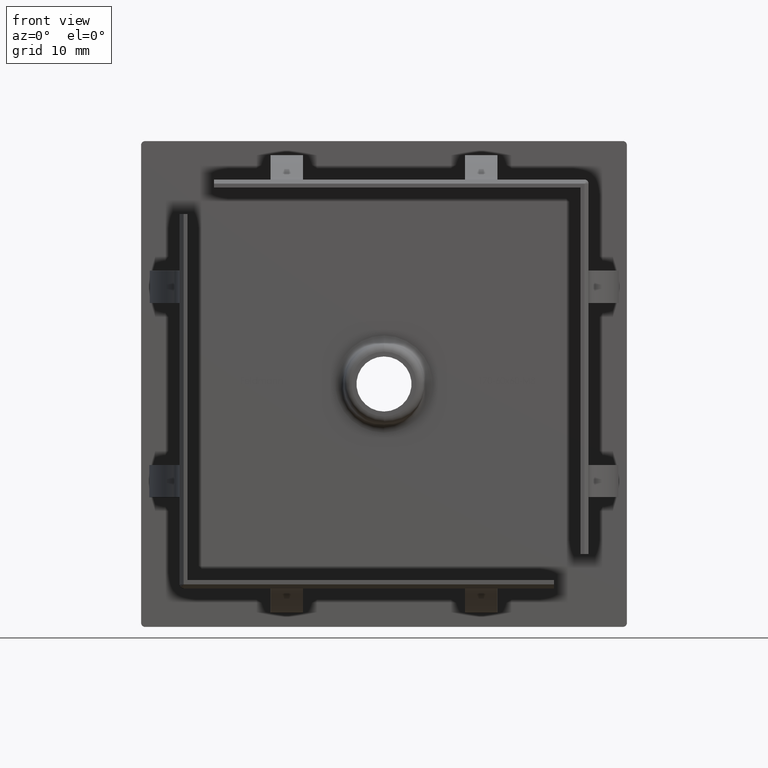
[diagram: clean part render]
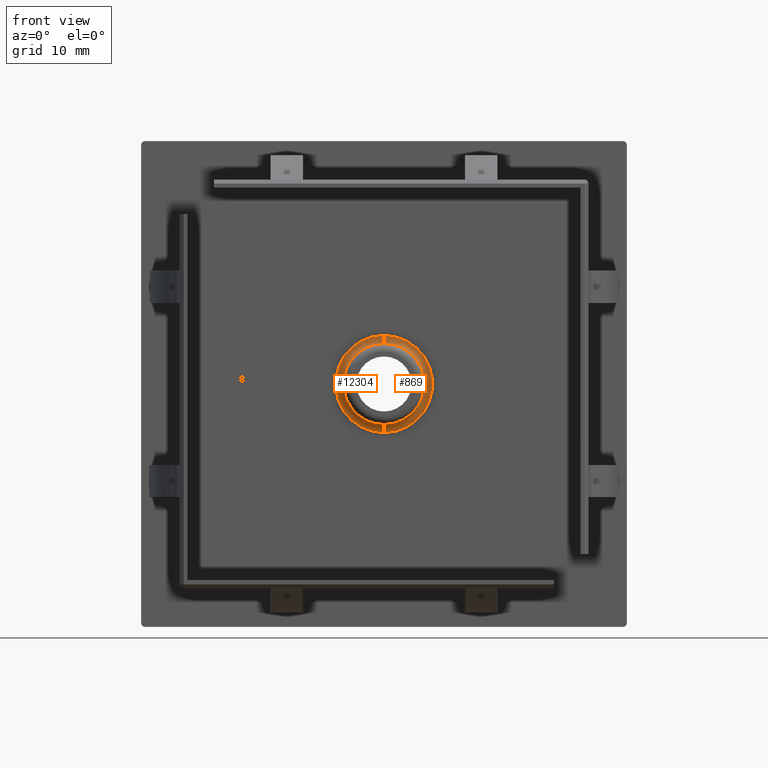
[diagram: same view with one multi-face feature highlighted, each face labeled with its STEP entity id]
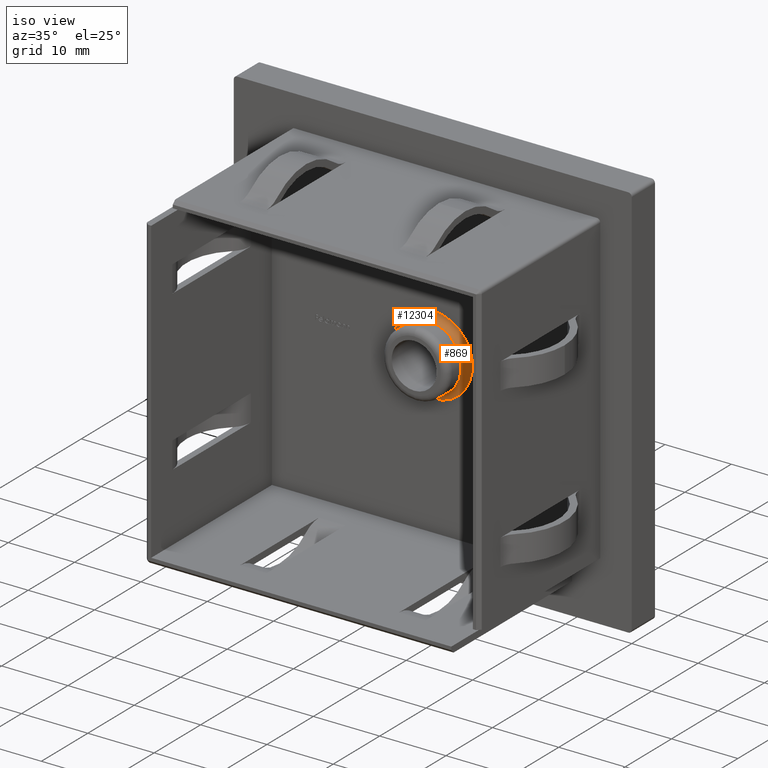
[diagram: same view with one multi-face feature highlighted, each face labeled with its STEP entity id]
A machine part, front view. The highlighted faces form ONE feature: a constant-radius fillet chain: 2 tangent blend faces with common blend radius 1 mm. The faces share edges in the B-rep.
A second angle (iso view) of the same feature is appended — it is thin or edge-on in the first view.
Their STEP definitions:
[1] entity #869 (Torus):
#51 = ORIENTED_EDGE ( 'NONE', *, *, #17994, .F. ) ;
#869 = ADVANCED_FACE ( 'NONE', ( #10558 ), #870, .F. ) ;
#870 = TOROIDAL_SURFACE ( 'NONE', #14231, 6.000000000000000000, 1.000000000000000000 ) ;
#1428 = EDGE_LOOP ( 'NONE', ( #51, #15776, #9481, #3318 ) ) ;
#1781 = DIRECTION ( 'NONE',  ( 0.0000000000000000000, 0.0000000000000000000, 1.000000000000000000 ) ) ;
#1787 = CARTESIAN_POINT ( 'NONE',  ( 0.0000000000000000000, -1.000000000000000000, 6.000000000000000000 ) ) ;
#2275 = AXIS2_PLACEMENT_3D ( 'NONE', #4143, #2614, #18212 ) ;
#2516 = AXIS2_PLACEMENT_3D ( 'NONE', #15834, #10197, #1781 ) ;
#2614 = DIRECTION ( 'NONE',  ( 1.000000000000000000, -0.0000000000000000000, 1.224646799147353200E-016 ) ) ;
#2729 = VERTEX_POINT ( 'NONE', #9706 ) ;
#3003 = DIRECTION ( 'NONE',  ( -0.0000000000000000000, -1.000000000000000000, -0.0000000000000000000 ) ) ;
#3318 = ORIENTED_EDGE ( 'NONE', *, *, #9661, .F. ) ;
#3413 = EDGE_CURVE ( 'NONE', #16258, #11790, #8064, .T. ) ;
#4081 = DIRECTION ( 'NONE',  ( 0.0000000000000000000, 0.0000000000000000000, 1.000000000000000000 ) ) ;
#4143 = CARTESIAN_POINT ( 'NONE',  ( 7.347880794884119700E-016, -1.000000000000000000, -6.000000000000000000 ) ) ;
#5967 = AXIS2_PLACEMENT_3D ( 'NONE', #1787, #7381, #17082 ) ;
#7331 = DIRECTION ( 'NONE',  ( 0.0000000000000000000, 0.0000000000000000000, 1.000000000000000000 ) ) ;
#7381 = DIRECTION ( 'NONE',  ( -1.000000000000000000, 0.0000000000000000000, 0.0000000000000000000 ) ) ;
#8002 = AXIS2_PLACEMENT_3D ( 'NONE', #8679, #3003, #7331 ) ;
#8064 = CIRCLE ( 'NONE', #2516, 6.000000000000000000 ) ;
#8536 = EDGE_CURVE ( 'NONE', #16258, #2729, #16654, .T. ) ;
#8679 = CARTESIAN_POINT ( 'NONE',  ( 0.0000000000000000000, -1.000000000000000000, 0.0000000000000000000 ) ) ;
#9481 = ORIENTED_EDGE ( 'NONE', *, *, #8536, .T. ) ;
#9661 = EDGE_CURVE ( 'NONE', #16005, #2729, #16612, .T. ) ;
#9695 = DIRECTION ( 'NONE',  ( 0.0000000000000000000, 1.000000000000000000, 0.0000000000000000000 ) ) ;
#9706 = CARTESIAN_POINT ( 'NONE',  ( 0.0000000000000000000, -1.000000000000000000, 5.000000000000000000 ) ) ;
#10197 = DIRECTION ( 'NONE',  ( 0.0000000000000000000, 1.000000000000000000, 0.0000000000000000000 ) ) ;
#10558 = FACE_OUTER_BOUND ( 'NONE', #1428, .T. ) ;
#11790 = VERTEX_POINT ( 'NONE', #14964 ) ;
#14000 = CARTESIAN_POINT ( 'NONE',  ( 0.0000000000000000000, 0.0000000000000000000, 6.000000000000000000 ) ) ;
#14231 = AXIS2_PLACEMENT_3D ( 'NONE', #16878, #9695, #4081 ) ;
#14815 = CIRCLE ( 'NONE', #2275, 1.000000000000000000 ) ;
#14964 = CARTESIAN_POINT ( 'NONE',  ( 7.347880794884119700E-016, 0.0000000000000000000, -6.000000000000000000 ) ) ;
#15776 = ORIENTED_EDGE ( 'NONE', *, *, #3413, .F. ) ;
#15834 = CARTESIAN_POINT ( 'NONE',  ( 0.0000000000000000000, 0.0000000000000000000, 0.0000000000000000000 ) ) ;
#16005 = VERTEX_POINT ( 'NONE', #17800 ) ;
#16258 = VERTEX_POINT ( 'NONE', #14000 ) ;
#16612 = CIRCLE ( 'NONE', #8002, 5.000000000000000000 ) ;
#16654 = CIRCLE ( 'NONE', #5967, 1.000000000000000000 ) ;
#16878 = CARTESIAN_POINT ( 'NONE',  ( 0.0000000000000000000, -1.000000000000000000, 0.0000000000000000000 ) ) ;
#17082 = DIRECTION ( 'NONE',  ( 0.0000000000000000000, 0.0000000000000000000, 1.000000000000000000 ) ) ;
#17800 = CARTESIAN_POINT ( 'NONE',  ( 6.123233995736766300E-016, -1.000000000000000000, -5.000000000000000000 ) ) ;
#17994 = EDGE_CURVE ( 'NONE', #11790, #16005, #14815, .T. ) ;
#18212 = DIRECTION ( 'NONE',  ( 1.224646799147353500E-016, 0.0000000000000000000, -1.000000000000000000 ) ) ;
[2] entity #12304 (Torus):
#669 = FACE_OUTER_BOUND ( 'NONE', #6087, .T. ) ;
#914 = DIRECTION ( 'NONE',  ( 0.0000000000000000000, 0.0000000000000000000, 1.000000000000000000 ) ) ;
#1120 = DIRECTION ( 'NONE',  ( 0.0000000000000000000, 1.000000000000000000, 0.0000000000000000000 ) ) ;
#1596 = ORIENTED_EDGE ( 'NONE', *, *, #17994, .T. ) ;
#1787 = CARTESIAN_POINT ( 'NONE',  ( 0.0000000000000000000, -1.000000000000000000, 6.000000000000000000 ) ) ;
#2134 = EDGE_CURVE ( 'NONE', #11790, #16258, #6344, .T. ) ;
#2272 = CARTESIAN_POINT ( 'NONE',  ( 0.0000000000000000000, -1.000000000000000000, 0.0000000000000000000 ) ) ;
#2275 = AXIS2_PLACEMENT_3D ( 'NONE', #4143, #2614, #18212 ) ;
#2614 = DIRECTION ( 'NONE',  ( 1.000000000000000000, -0.0000000000000000000, 1.224646799147353200E-016 ) ) ;
#2729 = VERTEX_POINT ( 'NONE', #9706 ) ;
#3153 = EDGE_CURVE ( 'NONE', #2729, #16005, #3622, .T. ) ;
#3622 = CIRCLE ( 'NONE', #10516, 5.000000000000000000 ) ;
#4056 = ORIENTED_EDGE ( 'NONE', *, *, #2134, .F. ) ;
#4143 = CARTESIAN_POINT ( 'NONE',  ( 7.347880794884119700E-016, -1.000000000000000000, -6.000000000000000000 ) ) ;
#4194 = TOROIDAL_SURFACE ( 'NONE', #10952, 6.000000000000000000, 1.000000000000000000 ) ;
#5967 = AXIS2_PLACEMENT_3D ( 'NONE', #1787, #7381, #17082 ) ;
#6087 = EDGE_LOOP ( 'NONE', ( #4056, #1596, #16528, #8198 ) ) ;
#6344 = CIRCLE ( 'NONE', #18106, 6.000000000000000000 ) ;
#6595 = DIRECTION ( 'NONE',  ( 0.0000000000000000000, 0.0000000000000000000, 1.000000000000000000 ) ) ;
#7381 = DIRECTION ( 'NONE',  ( -1.000000000000000000, 0.0000000000000000000, 0.0000000000000000000 ) ) ;
#8198 = ORIENTED_EDGE ( 'NONE', *, *, #8536, .F. ) ;
#8536 = EDGE_CURVE ( 'NONE', #16258, #2729, #16654, .T. ) ;
#9706 = CARTESIAN_POINT ( 'NONE',  ( 0.0000000000000000000, -1.000000000000000000, 5.000000000000000000 ) ) ;
#10516 = AXIS2_PLACEMENT_3D ( 'NONE', #2272, #14925, #914 ) ;
#10774 = DIRECTION ( 'NONE',  ( 0.0000000000000000000, 1.000000000000000000, 0.0000000000000000000 ) ) ;
#10952 = AXIS2_PLACEMENT_3D ( 'NONE', #17900, #1120, #16493 ) ;
#11790 = VERTEX_POINT ( 'NONE', #14964 ) ;
#12304 = ADVANCED_FACE ( 'NONE', ( #669 ), #4194, .F. ) ;
#14000 = CARTESIAN_POINT ( 'NONE',  ( 0.0000000000000000000, 0.0000000000000000000, 6.000000000000000000 ) ) ;
#14815 = CIRCLE ( 'NONE', #2275, 1.000000000000000000 ) ;
#14925 = DIRECTION ( 'NONE',  ( -0.0000000000000000000, -1.000000000000000000, -0.0000000000000000000 ) ) ;
#14964 = CARTESIAN_POINT ( 'NONE',  ( 7.347880794884119700E-016, 0.0000000000000000000, -6.000000000000000000 ) ) ;
#16005 = VERTEX_POINT ( 'NONE', #17800 ) ;
#16242 = CARTESIAN_POINT ( 'NONE',  ( 0.0000000000000000000, 0.0000000000000000000, 0.0000000000000000000 ) ) ;
#16258 = VERTEX_POINT ( 'NONE', #14000 ) ;
#16493 = DIRECTION ( 'NONE',  ( 0.0000000000000000000, 0.0000000000000000000, 1.000000000000000000 ) ) ;
#16528 = ORIENTED_EDGE ( 'NONE', *, *, #3153, .F. ) ;
#16654 = CIRCLE ( 'NONE', #5967, 1.000000000000000000 ) ;
#17082 = DIRECTION ( 'NONE',  ( 0.0000000000000000000, 0.0000000000000000000, 1.000000000000000000 ) ) ;
#17800 = CARTESIAN_POINT ( 'NONE',  ( 6.123233995736766300E-016, -1.000000000000000000, -5.000000000000000000 ) ) ;
#17900 = CARTESIAN_POINT ( 'NONE',  ( 0.0000000000000000000, -1.000000000000000000, 0.0000000000000000000 ) ) ;
#17994 = EDGE_CURVE ( 'NONE', #11790, #16005, #14815, .T. ) ;
#18106 = AXIS2_PLACEMENT_3D ( 'NONE', #16242, #10774, #6595 ) ;
#18212 = DIRECTION ( 'NONE',  ( 1.224646799147353500E-016, 0.0000000000000000000, -1.000000000000000000 ) ) ;